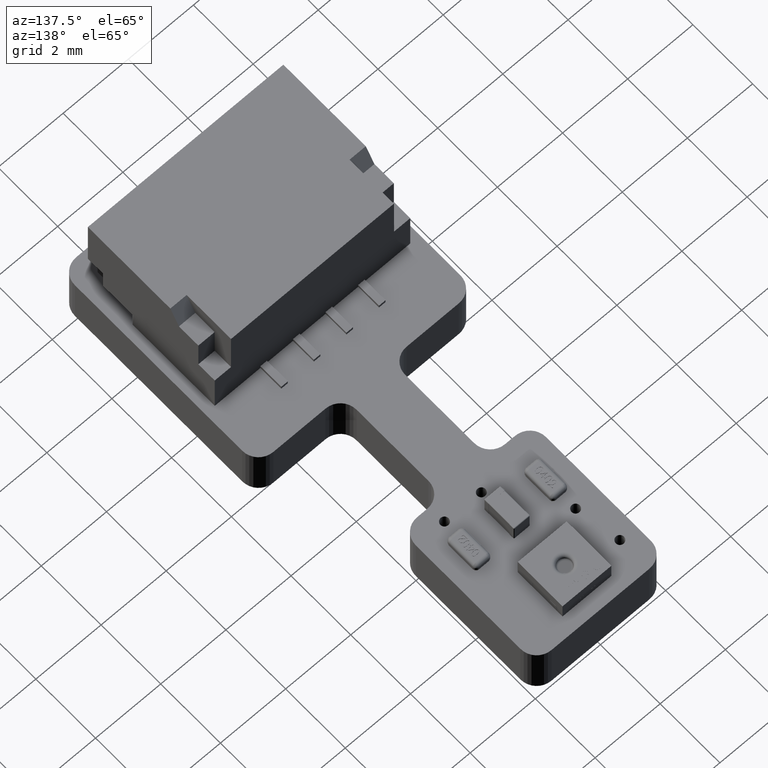
[diagram: clean part render]
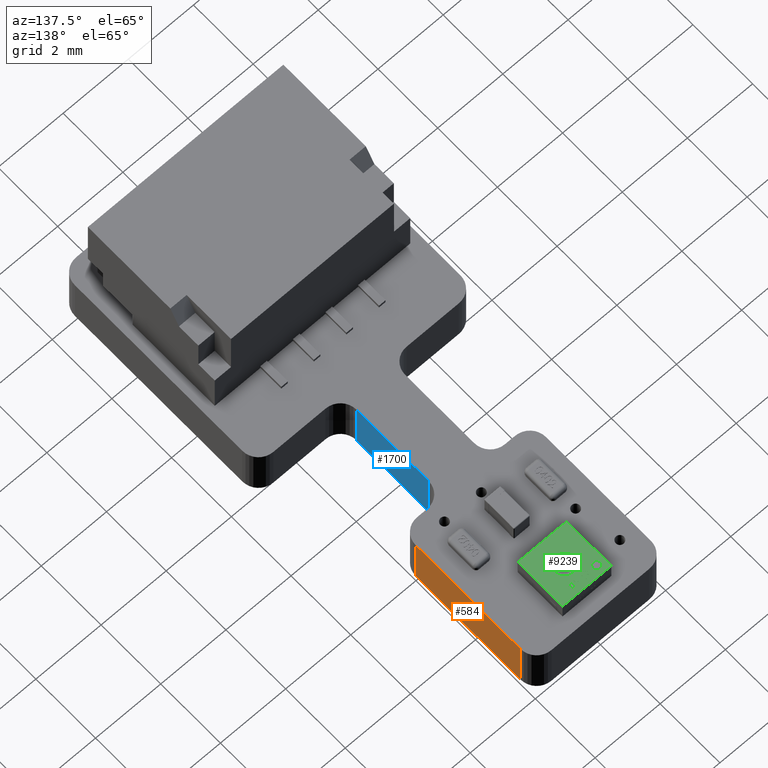
[diagram: same view with three faces highlighted in distinct colors, each labeled with its STEP entity id]
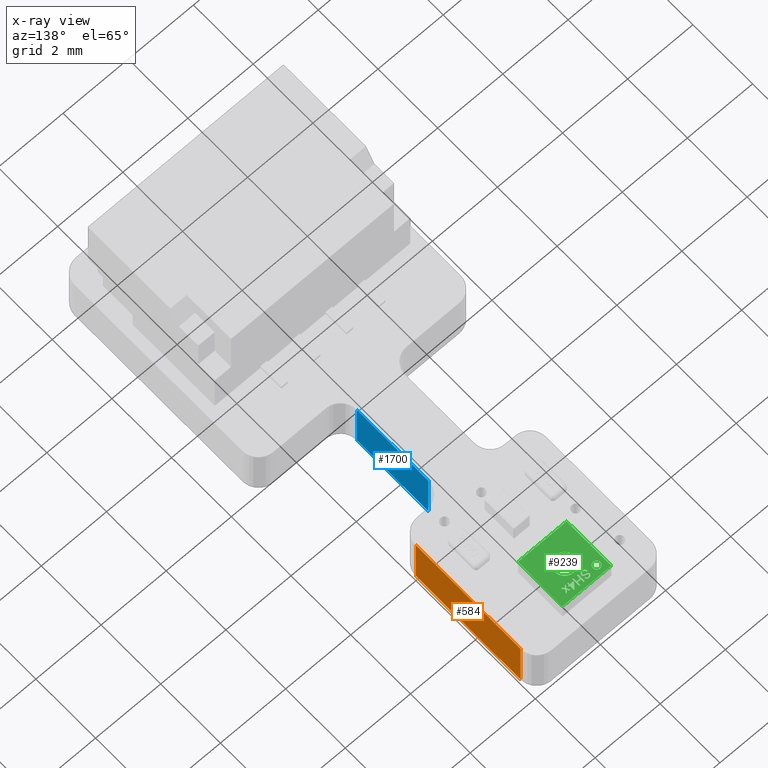
[diagram: x-ray of the same camera — body ghosted, the three highlighted faces saturated]
A machine part, auxiliary view with three faces highlighted in distinct colors.
The next image is the same camera in x-ray (body ghosted, the three faces saturated) — at least one of them is partly hidden behind the body in this view.
Their STEP definitions:

[orange] entity #584 — the highlighted planar face has unit normal (-1, 0, 0).
#526 = EDGE_CURVE('',#527,#529,#531,.T.);
#527 = VERTEX_POINT('',#528);
#528 = CARTESIAN_POINT('',(4.,-0.5,-0.82));
#529 = VERTEX_POINT('',#530);
#530 = CARTESIAN_POINT('',(4.,-0.5,0.82));
#531 = LINE('',#532,#533);
#532 = CARTESIAN_POINT('',(4.,-0.5,-0.82));
#533 = VECTOR('',#534,1.);
#534 = DIRECTION('',(0.E+000,0.E+000,1.));
#584 = ADVANCED_FACE('',(#585),#610,.F.);
#585 = FACE_BOUND('',#586,.F.);
#586 = EDGE_LOOP('',(#587,#597,#603,#604));
#587 = ORIENTED_EDGE('',*,*,#588,.T.);
#588 = EDGE_CURVE('',#589,#591,#593,.T.);
#589 = VERTEX_POINT('',#590);
#590 = CARTESIAN_POINT('',(4.,-4.,-0.82));
#591 = VERTEX_POINT('',#592);
#592 = CARTESIAN_POINT('',(4.,-4.,0.82));
#593 = LINE('',#594,#595);
#594 = CARTESIAN_POINT('',(4.,-4.,-0.82));
#595 = VECTOR('',#596,1.);
#596 = DIRECTION('',(0.E+000,0.E+000,1.));
#597 = ORIENTED_EDGE('',*,*,#598,.T.);
#598 = EDGE_CURVE('',#591,#529,#599,.T.);
#599 = LINE('',#600,#601);
#600 = CARTESIAN_POINT('',(4.,-4.,0.82));
#601 = VECTOR('',#602,1.);
#602 = DIRECTION('',(0.E+000,1.,0.E+000));
#603 = ORIENTED_EDGE('',*,*,#526,.F.);
#604 = ORIENTED_EDGE('',*,*,#605,.F.);
#605 = EDGE_CURVE('',#589,#527,#606,.T.);
#606 = LINE('',#607,#608);
#607 = CARTESIAN_POINT('',(4.,-4.,-0.82));
#608 = VECTOR('',#609,1.);
#609 = DIRECTION('',(0.E+000,1.,0.E+000));
#610 = PLANE('',#611);
#611 = AXIS2_PLACEMENT_3D('',#612,#613,#614);
#612 = CARTESIAN_POINT('',(4.,-4.,-0.82));
#613 = DIRECTION('',(-1.,0.E+000,0.E+000));
#614 = DIRECTION('',(0.E+000,1.,0.E+000));

[blue] entity #1700 — the highlighted planar face has unit normal (-1, 0, 0).
#1642 = EDGE_CURVE('',#1643,#1645,#1647,.T.);
#1643 = VERTEX_POINT('',#1644);
#1644 = CARTESIAN_POINT('',(2.7,-5.,-0.82));
#1645 = VERTEX_POINT('',#1646);
#1646 = CARTESIAN_POINT('',(2.7,-5.,0.82));
#1647 = LINE('',#1648,#1649);
#1648 = CARTESIAN_POINT('',(2.7,-5.,-0.82));
#1649 = VECTOR('',#1650,1.);
#1650 = DIRECTION('',(0.E+000,0.E+000,1.));
#1700 = ADVANCED_FACE('',(#1701),#1726,.F.);
#1701 = FACE_BOUND('',#1702,.F.);
#1702 = EDGE_LOOP('',(#1703,#1713,#1719,#1720));
#1703 = ORIENTED_EDGE('',*,*,#1704,.T.);
#1704 = EDGE_CURVE('',#1705,#1707,#1709,.T.);
#1705 = VERTEX_POINT('',#1706);
#1706 = CARTESIAN_POINT('',(2.7,-7.4,-0.82));
#1707 = VERTEX_POINT('',#1708);
#1708 = CARTESIAN_POINT('',(2.7,-7.4,0.82));
#1709 = LINE('',#1710,#1711);
#1710 = CARTESIAN_POINT('',(2.7,-7.4,-0.82));
#1711 = VECTOR('',#1712,1.);
#1712 = DIRECTION('',(0.E+000,0.E+000,1.));
#1713 = ORIENTED_EDGE('',*,*,#1714,.T.);
#1714 = EDGE_CURVE('',#1707,#1645,#1715,.T.);
#1715 = LINE('',#1716,#1717);
#1716 = CARTESIAN_POINT('',(2.7,-7.4,0.82));
#1717 = VECTOR('',#1718,1.);
#1718 = DIRECTION('',(0.E+000,1.,0.E+000));
#1719 = ORIENTED_EDGE('',*,*,#1642,.F.);
#1720 = ORIENTED_EDGE('',*,*,#1721,.F.);
#1721 = EDGE_CURVE('',#1705,#1643,#1722,.T.);
#1722 = LINE('',#1723,#1724);
#1723 = CARTESIAN_POINT('',(2.7,-7.4,-0.82));
#1724 = VECTOR('',#1725,1.);
#1725 = DIRECTION('',(0.E+000,1.,0.E+000));
#1726 = PLANE('',#1727);
#1727 = AXIS2_PLACEMENT_3D('',#1728,#1729,#1730);
#1728 = CARTESIAN_POINT('',(2.7,-7.4,-0.82));
#1729 = DIRECTION('',(-1.,0.E+000,0.E+000));
#1730 = DIRECTION('',(0.E+000,1.,0.E+000));

[green] entity #9239 — the highlighted planar face has unit normal (0, 0, -1).
#5586 = VERTEX_POINT('',#5587);
#5587 = CARTESIAN_POINT('',(-0.5125,0.54,-0.4));
#5593 = EDGE_CURVE('',#5586,#5594,#5596,.T.);
#5594 = VERTEX_POINT('',#5595);
#5595 = CARTESIAN_POINT('',(-0.5125,0.54,-0.625));
#5596 = CIRCLE('',#5597,0.1125);
#5597 = AXIS2_PLACEMENT_3D('',#5598,#5599,#5600);
#5598 = CARTESIAN_POINT('',(-0.5125,0.54,-0.5125));
#5599 = DIRECTION('',(-0.E+000,1.,0.E+000));
#5600 = DIRECTION('',(0.E+000,0.E+000,-1.));
#5628 = VERTEX_POINT('',#5629);
#5629 = CARTESIAN_POINT('',(3.673940397442E-017,0.54,0.3));
#5636 = EDGE_CURVE('',#5637,#5628,#5639,.T.);
#5637 = VERTEX_POINT('',#5638);
#5638 = CARTESIAN_POINT('',(0.E+000,0.54,-0.3));
#5639 = CIRCLE('',#5640,0.3);
#5640 = AXIS2_PLACEMENT_3D('',#5641,#5642,#5643);
#5641 = CARTESIAN_POINT('',(0.E+000,0.54,1.626303258728E-016));
#5642 = DIRECTION('',(0.E+000,-1.,0.E+000));
#5643 = DIRECTION('',(0.E+000,0.E+000,-1.));
#5777 = VERTEX_POINT('',#5778);
#5778 = CARTESIAN_POINT('',(0.75,0.54,0.75));
#5784 = EDGE_CURVE('',#5785,#5777,#5787,.T.);
#5785 = VERTEX_POINT('',#5786);
#5786 = CARTESIAN_POINT('',(-0.75,0.54,0.75));
#5787 = LINE('',#5788,#5789);
#5788 = CARTESIAN_POINT('',(-0.75,0.54,0.75));
#5789 = VECTOR('',#5790,1.);
#5790 = DIRECTION('',(1.,0.E+000,-1.445602896647E-016));
#5851 = VERTEX_POINT('',#5852);
#5852 = CARTESIAN_POINT('',(-0.75,0.54,-0.75));
#5858 = EDGE_CURVE('',#5851,#5859,#5861,.T.);
#5859 = VERTEX_POINT('',#5860);
#5860 = CARTESIAN_POINT('',(0.75,0.54,-0.75));
#5861 = LINE('',#5862,#5863);
#5862 = CARTESIAN_POINT('',(-0.75,0.54,-0.75));
#5863 = VECTOR('',#5864,1.);
#5864 = DIRECTION('',(1.,0.E+000,-1.445602896647E-016));
#5955 = EDGE_CURVE('',#5851,#5785,#5956,.T.);
#5956 = LINE('',#5957,#5958);
#5957 = CARTESIAN_POINT('',(-0.75,0.54,-0.75));
#5958 = VECTOR('',#5959,1.);
#5959 = DIRECTION('',(1.445602896647E-016,0.E+000,1.));
#5977 = EDGE_CURVE('',#5859,#5777,#5978,.T.);
#5978 = LINE('',#5979,#5980);
#5979 = CARTESIAN_POINT('',(0.75,0.54,-0.75));
#5980 = VECTOR('',#5981,1.);
#5981 = DIRECTION('',(0.E+000,0.E+000,1.));
#6485 = EDGE_CURVE('',#5628,#5637,#6486,.T.);
#6486 = CIRCLE('',#6487,0.3);
#6487 = AXIS2_PLACEMENT_3D('',#6488,#6489,#6490);
#6488 = CARTESIAN_POINT('',(0.E+000,0.54,1.626303258728E-016));
#6489 = DIRECTION('',(0.E+000,-1.,0.E+000));
#6490 = DIRECTION('',(0.E+000,0.E+000,-1.));
#6500 = EDGE_CURVE('',#6501,#6503,#6505,.T.);
#6501 = VERTEX_POINT('',#6502);
#6502 = CARTESIAN_POINT('',(-0.170177283654,0.54,-0.397115384615));
#6503 = VERTEX_POINT('',#6504);
#6504 = CARTESIAN_POINT('',(-0.264423076923,0.54,-0.477884615385));
#6505 = B_SPLINE_CURVE_WITH_KNOTS('',3,(#6506,#6507,#6508,#6509,#6510,
    #6511,#6512,#6513,#6514,#6515,#6516,#6517,#6518,#6519,#6520,#6521,
    #6522,#6523,#6524,#6525,#6526,#6527,#6528,#6529,#6530,#6531,#6532),
  .UNSPECIFIED.,.F.,.F.,(4,1,1,1,1,1,1,1,1,1,1,1,1,1,1,1,1,1,1,1,1,1,1,1
    ,4),(0.E+000,5.24925849213E-002,0.102825475138,0.151397339492,
    0.198033077248,0.242875895463,0.285999168385,0.327848661484,
    0.36839459688,0.407851991139,0.44683755286,0.485166045161,
    0.523341404471,0.561602214409,0.599919885566,0.638496426411,
    0.677790577047,0.717289989176,0.756605241593,0.796067890532,
    0.835886230954,0.875713683273,0.916263453947,0.957759675478,1.),
  .UNSPECIFIED.);
#6506 = CARTESIAN_POINT('',(-0.170177283654,0.54,-0.397115384615));
#6507 = CARTESIAN_POINT('',(-0.172627046657,0.54,-0.397135601177));
#6508 = CARTESIAN_POINT('',(-0.177425782426,0.54,-0.397175202534));
#6509 = CARTESIAN_POINT('',(-0.184476988682,0.54,-0.397654787454));
#6510 = CARTESIAN_POINT('',(-0.191234288512,0.54,-0.398348530612));
#6511 = CARTESIAN_POINT('',(-0.197691050567,0.54,-0.399381868767));
#6512 = CARTESIAN_POINT('',(-0.203827027079,0.54,-0.400737552317));
#6513 = CARTESIAN_POINT('',(-0.20966424342,0.54,-0.402365466254));
#6514 = CARTESIAN_POINT('',(-0.215216535442,0.54,-0.404240344772));
#6515 = CARTESIAN_POINT('',(-0.220464503257,0.54,-0.406445169414));
#6516 = CARTESIAN_POINT('',(-0.225394447476,0.54,-0.4090069348));
#6517 = CARTESIAN_POINT('',(-0.230095013479,0.54,-0.41177043148));
#6518 = CARTESIAN_POINT('',(-0.23448936739,0.54,-0.414902984478));
#6519 = CARTESIAN_POINT('',(-0.238586759872,0.54,-0.4183553705));
#6520 = CARTESIAN_POINT('',(-0.242491010132,0.54,-0.422027853191));
#6521 = CARTESIAN_POINT('',(-0.246040298617,0.54,-0.426070413727));
#6522 = CARTESIAN_POINT('',(-0.249355292067,0.54,-0.430364833072));
#6523 = CARTESIAN_POINT('',(-0.252360243841,0.54,-0.434950415387));
#6524 = CARTESIAN_POINT('',(-0.255044710777,0.54,-0.439767166084));
#6525 = CARTESIAN_POINT('',(-0.257458811365,0.54,-0.444734193016));
#6526 = CARTESIAN_POINT('',(-0.259492724888,0.54,-0.449887528084));
#6527 = CARTESIAN_POINT('',(-0.261131865652,0.54,-0.455201126444));
#6528 = CARTESIAN_POINT('',(-0.262520300869,0.54,-0.46063942943));
#6529 = CARTESIAN_POINT('',(-0.263483148604,0.54,-0.466247810202));
#6530 = CARTESIAN_POINT('',(-0.264191066689,0.54,-0.47200866047));
#6531 = CARTESIAN_POINT('',(-0.264345283376,0.54,-0.47591439465));
#6532 = CARTESIAN_POINT('',(-0.264423076923,0.54,-0.477884615385));
#6638 = EDGE_CURVE('',#6639,#6501,#6641,.T.);
#6639 = VERTEX_POINT('',#6640);
#6640 = CARTESIAN_POINT('',(-8.846153846154E-002,0.54,-0.4638671875));
#6641 = B_SPLINE_CURVE_WITH_KNOTS('',3,(#6642,#6643,#6644,#6645,#6646,
    #6647,#6648,#6649,#6650,#6651,#6652,#6653,#6654,#6655,#6656,#6657,
    #6658,#6659,#6660),.UNSPECIFIED.,.F.,.F.,(4,1,1,1,1,1,1,1,1,1,1,1,1,
    1,1,1,4),(0.E+000,7.481596665056E-002,0.148534560514,0.223872327296,
    0.301297120935,0.34089362902,0.380340062065,0.420126588728,
    0.459949907083,0.500831155556,0.541907175597,0.584438794153,
    0.628080171331,0.717266679907,0.807860006422,0.901924655836,1.),
  .UNSPECIFIED.);
#6642 = CARTESIAN_POINT('',(-8.846153846154E-002,0.54,-0.4638671875));
#6643 = CARTESIAN_POINT('',(-8.857896169981E-002,0.54,-0.460926637611));
#6644 = CARTESIAN_POINT('',(-8.881208585596E-002,0.54,-0.455088668725));
#6645 = CARTESIAN_POINT('',(-9.081936891742E-002,0.54,-0.446483232591));
#6646 = CARTESIAN_POINT('',(-9.397270444263E-002,0.54,-0.438144613009));
#6647 = CARTESIAN_POINT('',(-9.76707714427E-002,0.54,-0.431527459035));
#6648 = CARTESIAN_POINT('',(-0.101166562502,0.54,-0.426472915047));
#6649 = CARTESIAN_POINT('',(-0.104103191891,0.54,-0.422839939833));
#6650 = CARTESIAN_POINT('',(-0.107359745047,0.54,-0.419480700637));
#6651 = CARTESIAN_POINT('',(-0.110856048937,0.54,-0.416289958871));
#6652 = CARTESIAN_POINT('',(-0.114619249064,0.54,-0.413332816093));
#6653 = CARTESIAN_POINT('',(-0.11868107154,0.54,-0.410608265344));
#6654 = CARTESIAN_POINT('',(-0.122998645749,0.54,-0.408087944293));
#6655 = CARTESIAN_POINT('',(-0.129164033147,0.54,-0.405016785504));
#6656 = CARTESIAN_POINT('',(-0.137352691869,0.54,-0.401804061781));
#6657 = CARTESIAN_POINT('',(-0.147783399195,0.54,-0.399128614265));
#6658 = CARTESIAN_POINT('',(-0.158776101316,0.54,-0.397392985305));
#6659 = CARTESIAN_POINT('',(-0.166324369158,0.54,-0.397209196967));
#6660 = CARTESIAN_POINT('',(-0.170177283654,0.54,-0.397115384615));
#6735 = EDGE_CURVE('',#6736,#6639,#6738,.T.);
#6736 = VERTEX_POINT('',#6737);
#6737 = CARTESIAN_POINT('',(-0.127493990385,0.54,-0.518269230769));
#6738 = B_SPLINE_CURVE_WITH_KNOTS('',3,(#6739,#6740,#6741,#6742,#6743,
    #6744,#6745,#6746,#6747,#6748,#6749,#6750,#6751,#6752,#6753,#6754,
    #6755,#6756,#6757),.UNSPECIFIED.,.F.,.F.,(4,1,1,1,1,1,1,1,1,1,1,1,1,
    1,1,1,4),(0.E+000,7.493130598184E-002,0.147077596434,0.216364456173,
    0.282502730901,0.346687710824,0.408835555131,0.469261987288,
    0.528432043253,0.587001337973,0.644416393832,0.702188790266,
    0.759767179544,0.818489792827,0.877632827417,0.93801956627,1.),
  .UNSPECIFIED.);
#6739 = CARTESIAN_POINT('',(-0.127493990385,0.54,-0.518269230769));
#6740 = CARTESIAN_POINT('',(-0.125876248387,0.54,-0.517523347821));
#6741 = CARTESIAN_POINT('',(-0.122700891951,0.54,-0.51605930459));
#6742 = CARTESIAN_POINT('',(-0.118202574359,0.54,-0.513559671015));
#6743 = CARTESIAN_POINT('',(-0.11400515602,0.54,-0.510963936113));
#6744 = CARTESIAN_POINT('',(-0.110142549271,0.54,-0.508202213935));
#6745 = CARTESIAN_POINT('',(-0.106627243786,0.54,-0.505268695269));
#6746 = CARTESIAN_POINT('',(-0.103419934342,0.54,-0.502196991783));
#6747 = CARTESIAN_POINT('',(-0.100501249917,0.54,-0.499004366953));
#6748 = CARTESIAN_POINT('',(-9.798895914787E-002,0.54,-0.495588638194));
#6749 = CARTESIAN_POINT('',(-9.573317979195E-002,0.54,-0.492087884652));
#6750 = CARTESIAN_POINT('',(-9.375922264548E-002,0.54,-0.488453178794));
#6751 = CARTESIAN_POINT('',(-9.216983026013E-002,0.54,-0.484663145614));
#6752 = CARTESIAN_POINT('',(-9.077583400205E-002,0.54,-0.480763470442));
#6753 = CARTESIAN_POINT('',(-8.977315084678E-002,0.54,-0.476710777547));
#6754 = CARTESIAN_POINT('',(-8.898684501323E-002,0.54,-0.472546001833));
#6755 = CARTESIAN_POINT('',(-8.852820597039E-002,0.54,-0.468249567644));
#6756 = CARTESIAN_POINT('',(-8.848395307921E-002,0.54,-0.465340609518));
#6757 = CARTESIAN_POINT('',(-8.846153846154E-002,0.54,-0.4638671875));
#6832 = EDGE_CURVE('',#6833,#6736,#6835,.T.);
#6833 = VERTEX_POINT('',#6834);
#6834 = CARTESIAN_POINT('',(-0.215970552885,0.54,-0.548467548077));
#6835 = B_SPLINE_CURVE_WITH_KNOTS('',3,(#6836,#6837,#6838,#6839,#6840,
    #6841,#6842,#6843,#6844,#6845,#6846,#6847,#6848,#6849,#6850,#6851,
    #6852,#6853,#6854),.UNSPECIFIED.,.F.,.F.,(4,1,1,1,1,1,1,1,1,1,1,1,1,
    1,1,1,4),(0.E+000,3.274321823114E-002,7.240960549386E-002,
    0.119611485793,0.174672915199,0.237345090195,0.308352416843,
    0.387630047762,0.474783615586,0.56333231599,0.64513621683,
    0.720202526722,0.789134156332,0.85149707357,0.907330604432,
    0.956968682342,1.),.UNSPECIFIED.);
#6836 = CARTESIAN_POINT('',(-0.215970552885,0.54,-0.548467548077));
#6837 = CARTESIAN_POINT('',(-0.215189165077,0.54,-0.547801551614));
#6838 = CARTESIAN_POINT('',(-0.213461174185,0.54,-0.546328741555));
#6839 = CARTESIAN_POINT('',(-0.210245980757,0.54,-0.544379649887));
#6840 = CARTESIAN_POINT('',(-0.206259617744,0.54,-0.542410341157));
#6841 = CARTESIAN_POINT('',(-0.201475448921,0.54,-0.540452695888));
#6842 = CARTESIAN_POINT('',(-0.195901705622,0.54,-0.53848294847));
#6843 = CARTESIAN_POINT('',(-0.189547378405,0.54,-0.536454851277));
#6844 = CARTESIAN_POINT('',(-0.182388264388,0.54,-0.534440571589));
#6845 = CARTESIAN_POINT('',(-0.174642537352,0.54,-0.532499479833));
#6846 = CARTESIAN_POINT('',(-0.16681754693,0.54,-0.530550584739));
#6847 = CARTESIAN_POINT('',(-0.159381175319,0.54,-0.528609117454));
#6848 = CARTESIAN_POINT('',(-0.15255332743,0.54,-0.52676914073));
#6849 = CARTESIAN_POINT('',(-0.14634483614,0.54,-0.524974544832));
#6850 = CARTESIAN_POINT('',(-0.140749275467,0.54,-0.523230404229));
#6851 = CARTESIAN_POINT('',(-0.135786092035,0.54,-0.521500176926));
#6852 = CARTESIAN_POINT('',(-0.131415131812,0.54,-0.519908806691));
#6853 = CARTESIAN_POINT('',(-0.128737402289,0.54,-0.518789147803));
#6854 = CARTESIAN_POINT('',(-0.127493990385,0.54,-0.518269230769));
#6929 = EDGE_CURVE('',#6930,#6833,#6932,.T.);
#6930 = VERTEX_POINT('',#6931);
#6931 = CARTESIAN_POINT('',(-0.224038461538,0.54,-0.568344350962));
#6932 = B_SPLINE_CURVE_WITH_KNOTS('',3,(#6933,#6934,#6935,#6936,#6937,
    #6938,#6939),.UNSPECIFIED.,.F.,.F.,(4,1,1,1,4),(0.E+000,
    0.262741230528,0.509956502943,0.75332671842,1.),.UNSPECIFIED.);
#6933 = CARTESIAN_POINT('',(-0.224038461538,0.54,-0.568344350962));
#6934 = CARTESIAN_POINT('',(-0.223956461762,0.54,-0.56640854986));
#6935 = CARTESIAN_POINT('',(-0.223797307756,0.54,-0.56265133841));
#6936 = CARTESIAN_POINT('',(-0.222172112661,0.54,-0.557313473518));
#6937 = CARTESIAN_POINT('',(-0.219672551234,0.54,-0.552447663811));
#6938 = CARTESIAN_POINT('',(-0.217210084965,0.54,-0.549800201598));
#6939 = CARTESIAN_POINT('',(-0.215970552885,0.54,-0.548467548077));
#6978 = EDGE_CURVE('',#6979,#6930,#6981,.T.);
#6979 = VERTEX_POINT('',#6980);
#6980 = CARTESIAN_POINT('',(-0.176397235577,0.54,-0.601923076923));
#6981 = B_SPLINE_CURVE_WITH_KNOTS('',3,(#6982,#6983,#6984,#6985,#6986,
    #6987,#6988,#6989,#6990,#6991,#6992,#6993,#6994,#6995,#6996,#6997,
    #6998,#6999,#7000),.UNSPECIFIED.,.F.,.F.,(4,1,1,1,1,1,1,1,1,1,1,1,1,
    1,1,1,4),(0.E+000,9.151103632804E-002,0.177142860314,0.257108485228,
    0.331198399388,0.400592294524,0.465624959805,0.526973491314,
    0.585443115704,0.641398508086,0.695044167266,0.746781551493,
    0.796958934577,0.84754486236,0.897438541419,0.947648918887,1.),
  .UNSPECIFIED.);
#6982 = CARTESIAN_POINT('',(-0.176397235577,0.54,-0.601923076923));
#6983 = CARTESIAN_POINT('',(-0.178396809928,0.54,-0.601908005077));
#6984 = CARTESIAN_POINT('',(-0.182267494102,0.54,-0.601878829689));
#6985 = CARTESIAN_POINT('',(-0.187863007025,0.54,-0.601346998831));
#6986 = CARTESIAN_POINT('',(-0.193049324228,0.54,-0.600617308028));
#6987 = CARTESIAN_POINT('',(-0.197817537661,0.54,-0.599540952046));
#6988 = CARTESIAN_POINT('',(-0.20215202728,0.54,-0.598131998451));
#6989 = CARTESIAN_POINT('',(-0.206117123124,0.54,-0.596504980357));
#6990 = CARTESIAN_POINT('',(-0.209601857779,0.54,-0.594443123489));
#6991 = CARTESIAN_POINT('',(-0.212687466422,0.54,-0.592146483107));
#6992 = CARTESIAN_POINT('',(-0.215349194685,0.54,-0.589605377391));
#6993 = CARTESIAN_POINT('',(-0.217643210157,0.54,-0.586927666347));
#6994 = CARTESIAN_POINT('',(-0.219672089659,0.54,-0.58419202305));
#6995 = CARTESIAN_POINT('',(-0.221248573785,0.54,-0.581248915444));
#6996 = CARTESIAN_POINT('',(-0.222532068814,0.54,-0.578209803485));
#6997 = CARTESIAN_POINT('',(-0.223360064139,0.54,-0.57501756182));
#6998 = CARTESIAN_POINT('',(-0.223946304171,0.54,-0.571731238627));
#6999 = CARTESIAN_POINT('',(-0.224007317915,0.54,-0.569488914412));
#7000 = CARTESIAN_POINT('',(-0.224038461538,0.54,-0.568344350962));
#7075 = EDGE_CURVE('',#7076,#6979,#7078,.T.);
#7076 = VERTEX_POINT('',#7077);
#7077 = CARTESIAN_POINT('',(-0.125961538462,0.54,-0.561538461538));
#7078 = B_SPLINE_CURVE_WITH_KNOTS('',3,(#7079,#7080,#7081,#7082,#7083,
    #7084,#7085,#7086,#7087,#7088,#7089,#7090,#7091,#7092,#7093,#7094,
    #7095,#7096,#7097),.UNSPECIFIED.,.F.,.F.,(4,1,1,1,1,1,1,1,1,1,1,1,1,
    1,1,1,4),(0.E+000,6.715546744905E-002,0.131403346483,0.19273177191,
    0.251252659157,0.307703729884,0.362698916298,0.417778332785,
    0.472304385798,0.527872599792,0.585229986812,0.64505657601,
    0.707952356429,0.774434272045,0.844940431375,0.920403594475,1.),
  .UNSPECIFIED.);
#7079 = CARTESIAN_POINT('',(-0.125961538462,0.54,-0.561538461538));
#7080 = CARTESIAN_POINT('',(-0.126163151093,0.54,-0.563149601908));
#7081 = CARTESIAN_POINT('',(-0.12655764726,0.54,-0.566302126106));
#7082 = CARTESIAN_POINT('',(-0.127536339884,0.54,-0.570865879159));
#7083 = CARTESIAN_POINT('',(-0.128908270002,0.54,-0.575104487631));
#7084 = CARTESIAN_POINT('',(-0.130515220622,0.54,-0.579057479416));
#7085 = CARTESIAN_POINT('',(-0.1324631812,0.54,-0.582683739049));
#7086 = CARTESIAN_POINT('',(-0.134733939568,0.54,-0.586018086556));
#7087 = CARTESIAN_POINT('',(-0.137355148745,0.54,-0.589021237633));
#7088 = CARTESIAN_POINT('',(-0.140259362262,0.54,-0.591772547046));
#7089 = CARTESIAN_POINT('',(-0.143534954803,0.54,-0.594168169528));
#7090 = CARTESIAN_POINT('',(-0.147165095354,0.54,-0.596247643388));
#7091 = CARTESIAN_POINT('',(-0.151155911709,0.54,-0.598004322634));
#7092 = CARTESIAN_POINT('',(-0.155503887966,0.54,-0.59944310023));
#7093 = CARTESIAN_POINT('',(-0.160209884938,0.54,-0.6005586721));
#7094 = CARTESIAN_POINT('',(-0.165284606472,0.54,-0.601379308064));
#7095 = CARTESIAN_POINT('',(-0.170726091107,0.54,-0.601799592484));
#7096 = CARTESIAN_POINT('',(-0.17447355681,0.54,-0.601881190423));
#7097 = CARTESIAN_POINT('',(-0.176397235577,0.54,-0.601923076923));
#7172 = EDGE_CURVE('',#7173,#7076,#7175,.T.);
#7173 = VERTEX_POINT('',#7174);
#7174 = CARTESIAN_POINT('',(-9.423076923077E-002,0.54,-0.561538461538));
#7175 = LINE('',#7176,#7177);
#7176 = CARTESIAN_POINT('',(-9.423076923077E-002,0.54,-0.561538461538));
#7177 = VECTOR('',#7178,1.);
#7178 = DIRECTION('',(-1.,0.E+000,0.E+000));
#7203 = EDGE_CURVE('',#7204,#7173,#7206,.T.);
#7204 = VERTEX_POINT('',#7205);
#7205 = CARTESIAN_POINT('',(-0.177659254808,0.54,-0.627884615385));
#7206 = B_SPLINE_CURVE_WITH_KNOTS('',3,(#7207,#7208,#7209,#7210,#7211,
    #7212,#7213,#7214,#7215,#7216,#7217,#7218,#7219,#7220,#7221,#7222,
    #7223,#7224,#7225),.UNSPECIFIED.,.F.,.F.,(4,1,1,1,1,1,1,1,1,1,1,1,1,
    1,1,1,4),(0.E+000,0.100475060807,0.19564430316,0.28608337907,
    0.37298288047,0.415025668191,0.456051673509,0.495938749519,
    0.535566088803,0.574087109909,0.612519287487,0.651080960134,
    0.689513137713,0.766237460328,0.842350438867,0.919974494737,1.),
  .UNSPECIFIED.);
#7207 = CARTESIAN_POINT('',(-0.177659254808,0.54,-0.627884615385));
#7208 = CARTESIAN_POINT('',(-0.173658535481,0.54,-0.627792945011));
#7209 = CARTESIAN_POINT('',(-0.165868364085,0.54,-0.627614445131));
#7210 = CARTESIAN_POINT('',(-0.154549024856,0.54,-0.626129358642));
#7211 = CARTESIAN_POINT('',(-0.143991180129,0.54,-0.623579074351));
#7212 = CARTESIAN_POINT('',(-0.135711356049,0.54,-0.620724286958));
#7213 = CARTESIAN_POINT('',(-0.129590178934,0.54,-0.617834202064));
#7214 = CARTESIAN_POINT('',(-0.12524152427,0.54,-0.615579098167));
#7215 = CARTESIAN_POINT('',(-0.121205112816,0.54,-0.612971787258));
#7216 = CARTESIAN_POINT('',(-0.117444608726,0.54,-0.610150268962));
#7217 = CARTESIAN_POINT('',(-0.113925082008,0.54,-0.607115831852));
#7218 = CARTESIAN_POINT('',(-0.110736992402,0.54,-0.603796296698));
#7219 = CARTESIAN_POINT('',(-0.107741904163,0.54,-0.600304920034));
#7220 = CARTESIAN_POINT('',(-0.104222258117,0.54,-0.59529239705));
#7221 = CARTESIAN_POINT('',(-0.100427333508,0.54,-0.588658351238));
#7222 = CARTESIAN_POINT('',(-9.714610462459E-002,0.54,-0.580063681387));
#7223 = CARTESIAN_POINT('',(-9.489186210805E-002,0.54,-0.570992713026));
#7224 = CARTESIAN_POINT('',(-9.445336006595E-002,0.54,-0.564721720362));
#7225 = CARTESIAN_POINT('',(-9.423076923077E-002,0.54,-0.561538461538));
#7300 = EDGE_CURVE('',#7301,#7204,#7303,.T.);
#7301 = VERTEX_POINT('',#7302);
#7302 = CARTESIAN_POINT('',(-0.255769230769,0.54,-0.566271033654));
#7303 = B_SPLINE_CURVE_WITH_KNOTS('',3,(#7304,#7305,#7306,#7307,#7308,
    #7309,#7310,#7311,#7312,#7313,#7314,#7315,#7316,#7317,#7318,#7319,
    #7320,#7321,#7322),.UNSPECIFIED.,.F.,.F.,(4,1,1,1,1,1,1,1,1,1,1,1,1,
    1,1,1,4),(0.E+000,7.499546738983E-002,0.149165440427,0.223664294338,
    0.300412022191,0.339570484611,0.378920574693,0.418095737599,
    0.45822967675,0.498426721218,0.539707546453,0.582215951646,
    0.625823819994,0.715481264874,0.807384084413,0.901634125507,1.),
  .UNSPECIFIED.);
#7304 = CARTESIAN_POINT('',(-0.255769230769,0.54,-0.566271033654));
#7305 = CARTESIAN_POINT('',(-0.255662142949,0.54,-0.569060457379));
#7306 = CARTESIAN_POINT('',(-0.255449146051,0.54,-0.574608600926));
#7307 = CARTESIAN_POINT('',(-0.253559746839,0.54,-0.582750155708));
#7308 = CARTESIAN_POINT('',(-0.250546118947,0.54,-0.590584496982));
#7309 = CARTESIAN_POINT('',(-0.24711569518,0.54,-0.596804295437));
#7310 = CARTESIAN_POINT('',(-0.243770273935,0.54,-0.601507679194));
#7311 = CARTESIAN_POINT('',(-0.240996894313,0.54,-0.604894970196));
#7312 = CARTESIAN_POINT('',(-0.237886006636,0.54,-0.608026065345));
#7313 = CARTESIAN_POINT('',(-0.234533415433,0.54,-0.610944672615));
#7314 = CARTESIAN_POINT('',(-0.230879189737,0.54,-0.613607184637));
#7315 = CARTESIAN_POINT('',(-0.227013991254,0.54,-0.616123027309));
#7316 = CARTESIAN_POINT('',(-0.222797921386,0.54,-0.618285454459));
#7317 = CARTESIAN_POINT('',(-0.216873716226,0.54,-0.621037736133));
#7318 = CARTESIAN_POINT('',(-0.208948557179,0.54,-0.623786146761));
#7319 = CARTESIAN_POINT('',(-0.198971773185,0.54,-0.626181038004));
#7320 = CARTESIAN_POINT('',(-0.188471535624,0.54,-0.627591339665));
#7321 = CARTESIAN_POINT('',(-0.181314327029,0.54,-0.627785474051));
#7322 = CARTESIAN_POINT('',(-0.177659254808,0.54,-0.627884615385));
#7397 = EDGE_CURVE('',#7398,#7301,#7400,.T.);
#7398 = VERTEX_POINT('',#7399);
#7399 = CARTESIAN_POINT('',(-0.222551081731,0.54,-0.517638221154));
#7400 = B_SPLINE_CURVE_WITH_KNOTS('',3,(#7401,#7402,#7403,#7404,#7405,
    #7406,#7407,#7408,#7409,#7410,#7411),.UNSPECIFIED.,.F.,.F.,(4,1,1,1,
    1,1,1,1,4),(0.E+000,0.144805241058,0.279511801025,0.406393921131,
    0.527501540483,0.645393290473,0.761885410674,0.878942072918,1.),
  .UNSPECIFIED.);
#7401 = CARTESIAN_POINT('',(-0.222551081731,0.54,-0.517638221154));
#7402 = CARTESIAN_POINT('',(-0.225199250176,0.54,-0.519068838032));
#7403 = CARTESIAN_POINT('',(-0.230310904466,0.54,-0.521830300927));
#7404 = CARTESIAN_POINT('',(-0.237190625002,0.54,-0.526767804309));
#7405 = CARTESIAN_POINT('',(-0.242987487963,0.54,-0.532246878179));
#7406 = CARTESIAN_POINT('',(-0.247677037525,0.54,-0.538259577649));
#7407 = CARTESIAN_POINT('',(-0.251352054011,0.54,-0.544704213536));
#7408 = CARTESIAN_POINT('',(-0.253831571564,0.54,-0.55159174178));
#7409 = CARTESIAN_POINT('',(-0.255529836405,0.54,-0.558797140877));
#7410 = CARTESIAN_POINT('',(-0.255688543678,0.54,-0.563751982431));
#7411 = CARTESIAN_POINT('',(-0.255769230769,0.54,-0.566271033654));
#7462 = EDGE_CURVE('',#7463,#7398,#7465,.T.);
#7463 = VERTEX_POINT('',#7464);
#7464 = CARTESIAN_POINT('',(-0.144170673077,0.54,-0.492713341346));
#7465 = B_SPLINE_CURVE_WITH_KNOTS('',3,(#7466,#7467,#7468,#7469,#7470,
    #7471,#7472,#7473,#7474,#7475,#7476,#7477,#7478,#7479,#7480,#7481,
    #7482,#7483,#7484),.UNSPECIFIED.,.F.,.F.,(4,1,1,1,1,1,1,1,1,1,1,1,1,
    1,1,1,4),(0.E+000,3.120011115394E-002,7.04867190162E-002,
    0.11721483002,0.171575526995,0.234121978488,0.303962639673,
    0.382155640156,0.467646222068,0.554335381402,0.635074465667,
    0.710036687879,0.779092403775,0.842965645351,0.901001206851,
    0.953246256459,1.),.UNSPECIFIED.);
#7466 = CARTESIAN_POINT('',(-0.144170673077,0.54,-0.492713341346));
#7467 = CARTESIAN_POINT('',(-0.144963358906,0.54,-0.493038633451));
#7468 = CARTESIAN_POINT('',(-0.146754180197,0.54,-0.493773527411));
#7469 = CARTESIAN_POINT('',(-0.149823563854,0.54,-0.494746400481));
#7470 = CARTESIAN_POINT('',(-0.153465776275,0.54,-0.49600442463));
#7471 = CARTESIAN_POINT('',(-0.157768318687,0.54,-0.497299984758));
#7472 = CARTESIAN_POINT('',(-0.162708157688,0.54,-0.49867050618));
#7473 = CARTESIAN_POINT('',(-0.168277068944,0.54,-0.500221728642));
#7474 = CARTESIAN_POINT('',(-0.174471940637,0.54,-0.501871368822));
#7475 = CARTESIAN_POINT('',(-0.18111707551,0.54,-0.503627231106));
#7476 = CARTESIAN_POINT('',(-0.18782663675,0.54,-0.505412673786));
#7477 = CARTESIAN_POINT('',(-0.194236838666,0.54,-0.507199788499));
#7478 = CARTESIAN_POINT('',(-0.20013452917,0.54,-0.509013938853));
#7479 = CARTESIAN_POINT('',(-0.205568018309,0.54,-0.510760715178));
#7480 = CARTESIAN_POINT('',(-0.210509293975,0.54,-0.51251469814));
#7481 = CARTESIAN_POINT('',(-0.21497238064,0.54,-0.514227867453));
#7482 = CARTESIAN_POINT('',(-0.218962842693,0.54,-0.515865465186));
#7483 = CARTESIAN_POINT('',(-0.221400065004,0.54,-0.517069565679));
#7484 = CARTESIAN_POINT('',(-0.222551081731,0.54,-0.517638221154));
#7559 = EDGE_CURVE('',#7560,#7463,#7562,.T.);
#7560 = VERTEX_POINT('',#7561);
#7561 = CARTESIAN_POINT('',(-0.120192307692,0.54,-0.462334735577));
#7562 = B_SPLINE_CURVE_WITH_KNOTS('',3,(#7563,#7564,#7565,#7566,#7567,
    #7568,#7569,#7570,#7571,#7572,#7573),.UNSPECIFIED.,.F.,.F.,(4,1,1,1,
    1,1,1,1,4),(0.E+000,0.117767519212,0.230176448544,0.33984295897,
    0.450625259921,0.566942888872,0.696021306455,0.839438360227,1.),
  .UNSPECIFIED.);
#7563 = CARTESIAN_POINT('',(-0.120192307692,0.54,-0.462334735577));
#7564 = CARTESIAN_POINT('',(-0.120268272467,0.54,-0.463961196385));
#7565 = CARTESIAN_POINT('',(-0.120416745512,0.54,-0.467140111717));
#7566 = CARTESIAN_POINT('',(-0.121384303223,0.54,-0.471768215339));
#7567 = CARTESIAN_POINT('',(-0.123223283377,0.54,-0.476004274455));
#7568 = CARTESIAN_POINT('',(-0.125609571462,0.54,-0.48002118525));
#7569 = CARTESIAN_POINT('',(-0.128929305626,0.54,-0.4836937799));
#7570 = CARTESIAN_POINT('',(-0.133123415103,0.54,-0.487077748275));
#7571 = CARTESIAN_POINT('',(-0.138284306649,0.54,-0.490145686774));
#7572 = CARTESIAN_POINT('',(-0.142136135755,0.54,-0.491825868722));
#7573 = CARTESIAN_POINT('',(-0.144170673077,0.54,-0.492713341346));
#7624 = EDGE_CURVE('',#7625,#7560,#7627,.T.);
#7625 = VERTEX_POINT('',#7626);
#7626 = CARTESIAN_POINT('',(-0.171574519231,0.54,-0.423076923077));
#7627 = B_SPLINE_CURVE_WITH_KNOTS('',3,(#7628,#7629,#7630,#7631,#7632,
    #7633,#7634,#7635,#7636,#7637,#7638,#7639,#7640,#7641,#7642),
  .UNSPECIFIED.,.F.,.F.,(4,1,1,1,1,1,1,1,1,1,1,1,4),(0.E+000,
    0.10558388642,0.205868133262,0.300946717742,0.393001928595,
    0.480948511607,0.56287386628,0.641461343633,0.717741618179,
    0.791771760309,0.86271639303,0.9317768462,1.),.UNSPECIFIED.);
#7628 = CARTESIAN_POINT('',(-0.171574519231,0.54,-0.423076923077));
#7629 = CARTESIAN_POINT('',(-0.169030926238,0.54,-0.423124002274));
#7630 = CARTESIAN_POINT('',(-0.164071412444,0.54,-0.423215797592));
#7631 = CARTESIAN_POINT('',(-0.156896921389,0.54,-0.424318486785));
#7632 = CARTESIAN_POINT('',(-0.15014570446,0.54,-0.425882621782));
#7633 = CARTESIAN_POINT('',(-0.143943408843,0.54,-0.428248620847));
#7634 = CARTESIAN_POINT('',(-0.138312914177,0.54,-0.431121685573));
#7635 = CARTESIAN_POINT('',(-0.133423460351,0.54,-0.434596724732));
#7636 = CARTESIAN_POINT('',(-0.129249104762,0.54,-0.438515614316));
#7637 = CARTESIAN_POINT('',(-0.125980281762,0.54,-0.442981575704));
#7638 = CARTESIAN_POINT('',(-0.123412359682,0.54,-0.447661156408));
#7639 = CARTESIAN_POINT('',(-0.121528523376,0.54,-0.452471282744));
#7640 = CARTESIAN_POINT('',(-0.120406360696,0.54,-0.457385256307));
#7641 = CARTESIAN_POINT('',(-0.120263367987,0.54,-0.460691631067));
#7642 = CARTESIAN_POINT('',(-0.120192307692,0.54,-0.462334735577));
#7705 = EDGE_CURVE('',#7706,#7625,#7708,.T.);
#7706 = VERTEX_POINT('',#7707);
#7707 = CARTESIAN_POINT('',(-0.232692307692,0.54,-0.477884615385));
#7708 = B_SPLINE_CURVE_WITH_KNOTS('',3,(#7709,#7710,#7711,#7712,#7713,
    #7714,#7715,#7716,#7717,#7718,#7719,#7720,#7721,#7722,#7723),
  .UNSPECIFIED.,.F.,.F.,(4,1,1,1,1,1,1,1,1,1,1,1,4),(0.E+000,
    9.379647069693E-002,0.180188071019,0.260363191666,0.334846676064,
    0.407093005833,0.481448379288,0.559270913756,0.642269811311,
    0.728585944572,0.815977545276,0.906035129888,1.),.UNSPECIFIED.);
#7709 = CARTESIAN_POINT('',(-0.232692307692,0.54,-0.477884615385));
#7710 = CARTESIAN_POINT('',(-0.232343287639,0.54,-0.475035628639));
#7711 = CARTESIAN_POINT('',(-0.231672801323,0.54,-0.469562571687));
#7712 = CARTESIAN_POINT('',(-0.229798054615,0.54,-0.461805337353));
#7713 = CARTESIAN_POINT('',(-0.227385134636,0.54,-0.454830787581));
#7714 = CARTESIAN_POINT('',(-0.224378702863,0.54,-0.44854635778));
#7715 = CARTESIAN_POINT('',(-0.220423856416,0.54,-0.443027397885));
#7716 = CARTESIAN_POINT('',(-0.215658946737,0.54,-0.438049380342));
#7717 = CARTESIAN_POINT('',(-0.209872223261,0.54,-0.433738718582));
#7718 = CARTESIAN_POINT('',(-0.203340331579,0.54,-0.429902512042));
#7719 = CARTESIAN_POINT('',(-0.19606562716,0.54,-0.426890483167));
#7720 = CARTESIAN_POINT('',(-0.188299231389,0.54,-0.424657616582));
#7721 = CARTESIAN_POINT('',(-0.180078183201,0.54,-0.423334625339));
#7722 = CARTESIAN_POINT('',(-0.174448915324,0.54,-0.42316403122));
#7723 = CARTESIAN_POINT('',(-0.171574519231,0.54,-0.423076923077));
#7786 = EDGE_CURVE('',#6503,#7706,#7787,.T.);
#7787 = LINE('',#7788,#7789);
#7788 = CARTESIAN_POINT('',(-0.264423076923,0.54,-0.477884615385));
#7789 = VECTOR('',#7790,1.);
#7790 = DIRECTION('',(1.,0.E+000,0.E+000));
#7832 = EDGE_CURVE('',#7833,#7835,#7837,.T.);
#7833 = VERTEX_POINT('',#7834);
#7834 = CARTESIAN_POINT('',(-1.346153846154E-002,0.54,-0.4));
#7835 = VERTEX_POINT('',#7836);
#7836 = CARTESIAN_POINT('',(-4.519230769231E-002,0.54,-0.4));
#7837 = LINE('',#7838,#7839);
#7838 = CARTESIAN_POINT('',(-1.346153846154E-002,0.54,-0.4));
#7839 = VECTOR('',#7840,1.);
#7840 = DIRECTION('',(-1.,0.E+000,0.E+000));
#7872 = EDGE_CURVE('',#7873,#7833,#7875,.T.);
#7873 = VERTEX_POINT('',#7874);
#7874 = CARTESIAN_POINT('',(-1.346153846154E-002,0.54,-0.506730769231));
#7875 = LINE('',#7876,#7877);
#7876 = CARTESIAN_POINT('',(-1.346153846154E-002,0.54,-0.506730769231));
#7877 = VECTOR('',#7878,1.);
#7878 = DIRECTION('',(0.E+000,0.E+000,1.));
#7903 = EDGE_CURVE('',#7904,#7873,#7906,.T.);
#7904 = VERTEX_POINT('',#7905);
#7905 = CARTESIAN_POINT('',(9.615384615385E-002,0.54,-0.506730769231));
#7906 = LINE('',#7907,#7908);
#7907 = CARTESIAN_POINT('',(9.615384615385E-002,0.54,-0.506730769231));
#7908 = VECTOR('',#7909,1.);
#7909 = DIRECTION('',(-1.,0.E+000,0.E+000));
#7934 = EDGE_CURVE('',#7935,#7904,#7937,.T.);
#7935 = VERTEX_POINT('',#7936);
#7936 = CARTESIAN_POINT('',(9.615384615385E-002,0.54,-0.4));
#7937 = LINE('',#7938,#7939);
#7938 = CARTESIAN_POINT('',(9.615384615385E-002,0.54,-0.4));
#7939 = VECTOR('',#7940,1.);
#7940 = DIRECTION('',(0.E+000,0.E+000,-1.));
#7965 = EDGE_CURVE('',#7966,#7935,#7968,.T.);
#7966 = VERTEX_POINT('',#7967);
#7967 = CARTESIAN_POINT('',(0.127884615385,0.54,-0.4));
#7968 = LINE('',#7969,#7970);
#7969 = CARTESIAN_POINT('',(0.127884615385,0.54,-0.4));
#7970 = VECTOR('',#7971,1.);
#7971 = DIRECTION('',(-1.,0.E+000,0.E+000));
#7996 = EDGE_CURVE('',#7997,#7966,#7999,.T.);
#7997 = VERTEX_POINT('',#7998);
#7998 = CARTESIAN_POINT('',(0.127884615385,0.54,-0.625));
#7999 = LINE('',#8000,#8001);
#8000 = CARTESIAN_POINT('',(0.127884615385,0.54,-0.625));
#8001 = VECTOR('',#8002,1.);
#8002 = DIRECTION('',(0.E+000,0.E+000,1.));
#8027 = EDGE_CURVE('',#8028,#7997,#8030,.T.);
#8028 = VERTEX_POINT('',#8029);
#8029 = CARTESIAN_POINT('',(9.615384615385E-002,0.54,-0.625));
#8030 = LINE('',#8031,#8032);
#8031 = CARTESIAN_POINT('',(9.615384615385E-002,0.54,-0.625));
#8032 = VECTOR('',#8033,1.);
#8033 = DIRECTION('',(1.,0.E+000,0.E+000));
#8058 = EDGE_CURVE('',#8059,#8028,#8061,.T.);
#8059 = VERTEX_POINT('',#8060);
#8060 = CARTESIAN_POINT('',(9.615384615385E-002,0.54,-0.532692307692));
#8061 = LINE('',#8062,#8063);
#8062 = CARTESIAN_POINT('',(9.615384615385E-002,0.54,-0.532692307692));
#8063 = VECTOR('',#8064,1.);
#8064 = DIRECTION('',(0.E+000,0.E+000,-1.));
#8089 = EDGE_CURVE('',#8090,#8059,#8092,.T.);
#8090 = VERTEX_POINT('',#8091);
#8091 = CARTESIAN_POINT('',(-1.346153846154E-002,0.54,-0.532692307692));
#8092 = LINE('',#8093,#8094);
#8093 = CARTESIAN_POINT('',(-1.346153846154E-002,0.54,-0.532692307692));
#8094 = VECTOR('',#8095,1.);
#8095 = DIRECTION('',(1.,0.E+000,0.E+000));
#8120 = EDGE_CURVE('',#8121,#8090,#8123,.T.);
#8121 = VERTEX_POINT('',#8122);
#8122 = CARTESIAN_POINT('',(-1.346153846154E-002,0.54,-0.625));
#8123 = LINE('',#8124,#8125);
#8124 = CARTESIAN_POINT('',(-1.346153846154E-002,0.54,-0.625));
#8125 = VECTOR('',#8126,1.);
#8126 = DIRECTION('',(0.E+000,0.E+000,1.));
#8151 = EDGE_CURVE('',#8152,#8121,#8154,.T.);
#8152 = VERTEX_POINT('',#8153);
#8153 = CARTESIAN_POINT('',(-4.519230769231E-002,0.54,-0.625));
#8154 = LINE('',#8155,#8156);
#8155 = CARTESIAN_POINT('',(-4.519230769231E-002,0.54,-0.625));
#8156 = VECTOR('',#8157,1.);
#8157 = DIRECTION('',(1.,0.E+000,0.E+000));
#8182 = EDGE_CURVE('',#7835,#8152,#8183,.T.);
#8183 = LINE('',#8184,#8185);
#8184 = CARTESIAN_POINT('',(-4.519230769231E-002,0.54,-0.4));
#8185 = VECTOR('',#8186,1.);
#8186 = DIRECTION('',(0.E+000,0.E+000,-1.));
#8346 = EDGE_CURVE('',#8347,#8349,#8351,.T.);
#8347 = VERTEX_POINT('',#8348);
#8348 = CARTESIAN_POINT('',(0.283653846154,0.54,-0.4));
#8349 = VERTEX_POINT('',#8350);
#8350 = CARTESIAN_POINT('',(0.254807692308,0.54,-0.4));
#8351 = LINE('',#8352,#8353);
#8352 = CARTESIAN_POINT('',(0.283653846154,0.54,-0.4));
#8353 = VECTOR('',#8354,1.);
#8354 = DIRECTION('',(-1.,0.E+000,0.E+000));
#8377 = EDGE_CURVE('',#8378,#8347,#8380,.T.);
#8378 = VERTEX_POINT('',#8379);
#8379 = CARTESIAN_POINT('',(0.283653846154,0.54,-0.454807692308));
#8380 = LINE('',#8381,#8382);
#8381 = CARTESIAN_POINT('',(0.283653846154,0.54,-0.454807692308));
#8382 = VECTOR('',#8383,1.);
#8383 = DIRECTION('',(0.E+000,0.E+000,1.));
#8401 = EDGE_CURVE('',#8402,#8378,#8404,.T.);
#8402 = VERTEX_POINT('',#8403);
#8403 = CARTESIAN_POINT('',(0.3125,0.54,-0.454807692308));
#8404 = LINE('',#8405,#8406);
#8405 = CARTESIAN_POINT('',(0.3125,0.54,-0.454807692308));
#8406 = VECTOR('',#8407,1.);
#8407 = DIRECTION('',(-1.,0.E+000,0.E+000));
#8425 = EDGE_CURVE('',#8426,#8402,#8428,.T.);
#8426 = VERTEX_POINT('',#8427);
#8427 = CARTESIAN_POINT('',(0.3125,0.54,-0.483653846154));
#8428 = LINE('',#8429,#8430);
#8429 = CARTESIAN_POINT('',(0.3125,0.54,-0.483653846154));
#8430 = VECTOR('',#8431,1.);
#8431 = DIRECTION('',(0.E+000,0.E+000,1.));
#8449 = EDGE_CURVE('',#8450,#8426,#8452,.T.);
#8450 = VERTEX_POINT('',#8451);
#8451 = CARTESIAN_POINT('',(0.283653846154,0.54,-0.483653846154));
#8452 = LINE('',#8453,#8454);
#8453 = CARTESIAN_POINT('',(0.283653846154,0.54,-0.483653846154));
#8454 = VECTOR('',#8455,1.);
#8455 = DIRECTION('',(1.,0.E+000,0.E+000));
#8473 = EDGE_CURVE('',#8474,#8450,#8476,.T.);
#8474 = VERTEX_POINT('',#8475);
#8475 = CARTESIAN_POINT('',(0.283653846154,0.54,-0.622115384615));
#8476 = LINE('',#8477,#8478);
#8477 = CARTESIAN_POINT('',(0.283653846154,0.54,-0.622115384615));
#8478 = VECTOR('',#8479,1.);
#8479 = DIRECTION('',(0.E+000,0.E+000,1.));
#8497 = EDGE_CURVE('',#8498,#8474,#8500,.T.);
#8498 = VERTEX_POINT('',#8499);
#8499 = CARTESIAN_POINT('',(0.263461538462,0.54,-0.622115384615));
#8500 = LINE('',#8501,#8502);
#8501 = CARTESIAN_POINT('',(0.263461538462,0.54,-0.622115384615));
#8502 = VECTOR('',#8503,1.);
#8503 = DIRECTION('',(1.,0.E+000,0.E+000));
#8521 = EDGE_CURVE('',#8522,#8498,#8524,.T.);
#8522 = VERTEX_POINT('',#8523);
#8523 = CARTESIAN_POINT('',(0.156730769231,0.54,-0.483653846154));
#8524 = LINE('',#8525,#8526);
#8525 = CARTESIAN_POINT('',(0.156730769231,0.54,-0.483653846154));
#8526 = VECTOR('',#8527,1.);
#8527 = DIRECTION('',(0.610507860339,0.E+000,-0.792010197197));
#8545 = EDGE_CURVE('',#8546,#8522,#8548,.T.);
#8546 = VERTEX_POINT('',#8547);
#8547 = CARTESIAN_POINT('',(0.156730769231,0.54,-0.454807692308));
#8548 = LINE('',#8549,#8550);
#8549 = CARTESIAN_POINT('',(0.156730769231,0.54,-0.454807692308));
#8550 = VECTOR('',#8551,1.);
#8551 = DIRECTION('',(0.E+000,0.E+000,-1.));
#8569 = EDGE_CURVE('',#8570,#8546,#8572,.T.);
#8570 = VERTEX_POINT('',#8571);
#8571 = CARTESIAN_POINT('',(0.254807692308,0.54,-0.454807692308));
#8572 = LINE('',#8573,#8574);
#8573 = CARTESIAN_POINT('',(0.254807692308,0.54,-0.454807692308));
#8574 = VECTOR('',#8575,1.);
#8575 = DIRECTION('',(-1.,0.E+000,0.E+000));
#8593 = EDGE_CURVE('',#8349,#8570,#8594,.T.);
#8594 = LINE('',#8595,#8596);
#8595 = CARTESIAN_POINT('',(0.254807692308,0.54,-0.4));
#8596 = VECTOR('',#8597,1.);
#8597 = DIRECTION('',(0.E+000,0.E+000,-1.));
#8693 = EDGE_CURVE('',#8694,#8696,#8698,.T.);
#8694 = VERTEX_POINT('',#8695);
#8695 = CARTESIAN_POINT('',(0.364378004808,0.54,-0.4));
#8696 = VERTEX_POINT('',#8697);
#8697 = CARTESIAN_POINT('',(0.329807692308,0.54,-0.4));
#8698 = LINE('',#8699,#8700);
#8699 = CARTESIAN_POINT('',(0.364378004808,0.54,-0.4));
#8700 = VECTOR('',#8701,1.);
#8701 = DIRECTION('',(-1.,0.E+000,0.E+000));
#8733 = EDGE_CURVE('',#8734,#8694,#8736,.T.);
#8734 = VERTEX_POINT('',#8735);
#8735 = CARTESIAN_POINT('',(0.404311899038,0.54,-0.456926081731));
#8736 = LINE('',#8737,#8738);
#8737 = CARTESIAN_POINT('',(0.404311899038,0.54,-0.456926081731));
#8738 = VECTOR('',#8739,1.);
#8739 = DIRECTION('',(-0.57428859235,0.E+000,0.818652925663));
#8764 = EDGE_CURVE('',#8765,#8734,#8767,.T.);
#8765 = VERTEX_POINT('',#8766);
#8766 = CARTESIAN_POINT('',(0.4103515625,0.54,-0.448001802885));
#8767 = LINE('',#8768,#8769);
#8768 = CARTESIAN_POINT('',(0.4103515625,0.54,-0.448001802885));
#8769 = VECTOR('',#8770,1.);
#8770 = DIRECTION('',(-0.560478152359,0.E+000,-0.828169210203));
#8795 = EDGE_CURVE('',#8796,#8765,#8798,.T.);
#8796 = VERTEX_POINT('',#8797);
#8797 = CARTESIAN_POINT('',(0.442352764423,0.54,-0.4));
#8798 = LINE('',#8799,#8800);
#8799 = CARTESIAN_POINT('',(0.442352764423,0.54,-0.4));
#8800 = VECTOR('',#8801,1.);
#8801 = DIRECTION('',(-0.554700196225,0.E+000,-0.832050294338));
#8826 = EDGE_CURVE('',#8827,#8796,#8829,.T.);
#8827 = VERTEX_POINT('',#8828);
#8828 = CARTESIAN_POINT('',(0.476923076923,0.54,-0.4));
#8829 = LINE('',#8830,#8831);
#8830 = CARTESIAN_POINT('',(0.476923076923,0.54,-0.4));
#8831 = VECTOR('',#8832,1.);
#8832 = DIRECTION('',(-1.,0.E+000,0.E+000));
#8857 = EDGE_CURVE('',#8858,#8827,#8860,.T.);
#8858 = VERTEX_POINT('',#8859);
#8859 = CARTESIAN_POINT('',(0.4220703125,0.54,-0.482256610577));
#8860 = LINE('',#8861,#8862);
#8861 = CARTESIAN_POINT('',(0.4220703125,0.54,-0.482256610577));
#8862 = VECTOR('',#8863,1.);
#8863 = DIRECTION('',(0.554805394761,0.E+000,0.831980152374));
#8888 = EDGE_CURVE('',#8889,#8858,#8891,.T.);
#8889 = VERTEX_POINT('',#8890);
#8890 = CARTESIAN_POINT('',(0.479717548077,0.54,-0.564423076923));
#8891 = LINE('',#8892,#8893);
#8892 = CARTESIAN_POINT('',(0.479717548077,0.54,-0.564423076923));
#8893 = VECTOR('',#8894,1.);
#8894 = DIRECTION('',(-0.574336009564,0.E+000,0.818619660231));
#8919 = EDGE_CURVE('',#8920,#8889,#8922,.T.);
#8920 = VERTEX_POINT('',#8921);
#8921 = CARTESIAN_POINT('',(0.445192307692,0.54,-0.564423076923));
#8922 = LINE('',#8923,#8924);
#8923 = CARTESIAN_POINT('',(0.445192307692,0.54,-0.564423076923));
#8924 = VECTOR('',#8925,1.);
#8925 = DIRECTION('',(1.,0.E+000,0.E+000));
#8950 = EDGE_CURVE('',#8951,#8920,#8953,.T.);
#8951 = VERTEX_POINT('',#8952);
#8952 = CARTESIAN_POINT('',(0.416301081731,0.54,-0.523272235577));
#8953 = LINE('',#8954,#8955);
#8954 = CARTESIAN_POINT('',(0.416301081731,0.54,-0.523272235577));
#8955 = VECTOR('',#8956,1.);
#8956 = DIRECTION('',(0.574604871339,0.E+000,-0.818430963389));
#8981 = EDGE_CURVE('',#8982,#8951,#8984,.T.);
#8982 = VERTEX_POINT('',#8983);
#8983 = CARTESIAN_POINT('',(0.405258413462,0.54,-0.507542067308));
#8984 = B_SPLINE_CURVE_WITH_KNOTS('',3,(#8985,#8986,#8987,#8988,#8989),
  .UNSPECIFIED.,.F.,.F.,(4,1,4),(0.E+000,0.501633429228,1.),
  .UNSPECIFIED.);
#8985 = CARTESIAN_POINT('',(0.405258413462,0.54,-0.507542067308));
#8986 = CARTESIAN_POINT('',(0.407107124881,0.54,-0.510170744245));
#8987 = CARTESIAN_POINT('',(0.410792508093,0.54,-0.515410979015));
#8988 = CARTESIAN_POINT('',(0.414468893929,0.54,-0.520657529969));
#8989 = CARTESIAN_POINT('',(0.416301081731,0.54,-0.523272235577));
#9022 = EDGE_CURVE('',#9023,#8982,#9025,.T.);
#9023 = VERTEX_POINT('',#9024);
#9024 = CARTESIAN_POINT('',(0.393900240385,0.54,-0.524534254808));
#9025 = B_SPLINE_CURVE_WITH_KNOTS('',3,(#9026,#9027,#9028,#9029,#9030,
    #9031,#9032),.UNSPECIFIED.,.F.,.F.,(4,1,1,1,4),(0.E+000,
    0.299078410943,0.56575203479,0.798167438882,1.),.UNSPECIFIED.);
#9026 = CARTESIAN_POINT('',(0.393900240385,0.54,-0.524534254808));
#9027 = CARTESIAN_POINT('',(0.395019389281,0.54,-0.522831402962));
#9028 = CARTESIAN_POINT('',(0.397136428633,0.54,-0.519610201226));
#9029 = CARTESIAN_POINT('',(0.400239084653,0.54,-0.515143481868));
#9030 = CARTESIAN_POINT('',(0.402832378043,0.54,-0.511133061188));
#9031 = CARTESIAN_POINT('',(0.404488616366,0.54,-0.508681513434));
#9032 = CARTESIAN_POINT('',(0.405258413462,0.54,-0.507542067308));
#9071 = EDGE_CURVE('',#9072,#9023,#9074,.T.);
#9072 = VERTEX_POINT('',#9073);
#9073 = CARTESIAN_POINT('',(0.367262620192,0.54,-0.564423076923));
#9074 = LINE('',#9075,#9076);
#9075 = CARTESIAN_POINT('',(0.367262620192,0.54,-0.564423076923));
#9076 = VECTOR('',#9077,1.);
#9077 = DIRECTION('',(0.555350574013,0.E+000,0.831616341797));
#9102 = EDGE_CURVE('',#9103,#9072,#9105,.T.);
#9103 = VERTEX_POINT('',#9104);
#9104 = CARTESIAN_POINT('',(0.332692307692,0.54,-0.564423076923));
#9105 = LINE('',#9106,#9107);
#9106 = CARTESIAN_POINT('',(0.332692307692,0.54,-0.564423076923));
#9107 = VECTOR('',#9108,1.);
#9108 = DIRECTION('',(1.,0.E+000,0.E+000));
#9133 = EDGE_CURVE('',#9134,#9103,#9136,.T.);
#9134 = VERTEX_POINT('',#9135);
#9135 = CARTESIAN_POINT('',(0.3875,0.54,-0.482211538462));
#9136 = LINE('',#9137,#9138);
#9137 = CARTESIAN_POINT('',(0.3875,0.54,-0.482211538462));
#9138 = VECTOR('',#9139,1.);
#9139 = DIRECTION('',(-0.554700196225,0.E+000,-0.832050294338));
#9164 = EDGE_CURVE('',#8696,#9134,#9165,.T.);
#9165 = LINE('',#9166,#9167);
#9166 = CARTESIAN_POINT('',(0.329807692308,0.54,-0.4));
#9167 = VECTOR('',#9168,1.);
#9168 = DIRECTION('',(0.574425749096,0.E+000,-0.818556692462));
#9218 = EDGE_CURVE('',#5594,#5586,#9219,.T.);
#9219 = CIRCLE('',#9220,0.1125);
#9220 = AXIS2_PLACEMENT_3D('',#9221,#9222,#9223);
#9221 = CARTESIAN_POINT('',(-0.5125,0.54,-0.5125));
#9222 = DIRECTION('',(-0.E+000,1.,0.E+000));
#9223 = DIRECTION('',(0.E+000,0.E+000,-1.));
#9239 = ADVANCED_FACE('',(#9240,#9246,#9260,#9278,#9282,#9295,#9312),
  #9316,.F.);
#9240 = FACE_BOUND('',#9241,.T.);
#9241 = EDGE_LOOP('',(#9242,#9243,#9244,#9245));
#9242 = ORIENTED_EDGE('',*,*,#5784,.T.);
#9243 = ORIENTED_EDGE('',*,*,#5977,.F.);
#9244 = ORIENTED_EDGE('',*,*,#5858,.F.);
#9245 = ORIENTED_EDGE('',*,*,#5955,.T.);
#9246 = FACE_BOUND('',#9247,.T.);
#9247 = EDGE_LOOP('',(#9248,#9249,#9250,#9251,#9252,#9253,#9254,#9255,
    #9256,#9257,#9258,#9259));
#9248 = ORIENTED_EDGE('',*,*,#7872,.T.);
#9249 = ORIENTED_EDGE('',*,*,#7832,.T.);
#9250 = ORIENTED_EDGE('',*,*,#8182,.T.);
#9251 = ORIENTED_EDGE('',*,*,#8151,.T.);
#9252 = ORIENTED_EDGE('',*,*,#8120,.T.);
#9253 = ORIENTED_EDGE('',*,*,#8089,.T.);
#9254 = ORIENTED_EDGE('',*,*,#8058,.T.);
#9255 = ORIENTED_EDGE('',*,*,#8027,.T.);
#9256 = ORIENTED_EDGE('',*,*,#7996,.T.);
#9257 = ORIENTED_EDGE('',*,*,#7965,.T.);
#9258 = ORIENTED_EDGE('',*,*,#7934,.T.);
#9259 = ORIENTED_EDGE('',*,*,#7903,.T.);
#9260 = FACE_BOUND('',#9261,.T.);
#9261 = EDGE_LOOP('',(#9262,#9263,#9264,#9265,#9266,#9267,#9268,#9269,
    #9270,#9271,#9272,#9273,#9274,#9275,#9276,#9277));
#9262 = ORIENTED_EDGE('',*,*,#6638,.T.);
#9263 = ORIENTED_EDGE('',*,*,#6500,.T.);
#9264 = ORIENTED_EDGE('',*,*,#7786,.T.);
#9265 = ORIENTED_EDGE('',*,*,#7705,.T.);
#9266 = ORIENTED_EDGE('',*,*,#7624,.T.);
#9267 = ORIENTED_EDGE('',*,*,#7559,.T.);
#9268 = ORIENTED_EDGE('',*,*,#7462,.T.);
#9269 = ORIENTED_EDGE('',*,*,#7397,.T.);
#9270 = ORIENTED_EDGE('',*,*,#7300,.T.);
#9271 = ORIENTED_EDGE('',*,*,#7203,.T.);
#9272 = ORIENTED_EDGE('',*,*,#7172,.T.);
#9273 = ORIENTED_EDGE('',*,*,#7075,.T.);
#9274 = ORIENTED_EDGE('',*,*,#6978,.T.);
#9275 = ORIENTED_EDGE('',*,*,#6929,.T.);
#9276 = ORIENTED_EDGE('',*,*,#6832,.T.);
#9277 = ORIENTED_EDGE('',*,*,#6735,.T.);
#9278 = FACE_BOUND('',#9279,.T.);
#9279 = EDGE_LOOP('',(#9280,#9281));
#9280 = ORIENTED_EDGE('',*,*,#5636,.T.);
#9281 = ORIENTED_EDGE('',*,*,#6485,.T.);
#9282 = FACE_BOUND('',#9283,.T.);
#9283 = EDGE_LOOP('',(#9284,#9285,#9286,#9287,#9288,#9289,#9290,#9291,
    #9292,#9293,#9294));
#9284 = ORIENTED_EDGE('',*,*,#8377,.T.);
#9285 = ORIENTED_EDGE('',*,*,#8346,.T.);
#9286 = ORIENTED_EDGE('',*,*,#8593,.T.);
#9287 = ORIENTED_EDGE('',*,*,#8569,.T.);
#9288 = ORIENTED_EDGE('',*,*,#8545,.T.);
#9289 = ORIENTED_EDGE('',*,*,#8521,.T.);
#9290 = ORIENTED_EDGE('',*,*,#8497,.T.);
#9291 = ORIENTED_EDGE('',*,*,#8473,.T.);
#9292 = ORIENTED_EDGE('',*,*,#8449,.T.);
#9293 = ORIENTED_EDGE('',*,*,#8425,.T.);
#9294 = ORIENTED_EDGE('',*,*,#8401,.T.);
#9295 = FACE_BOUND('',#9296,.T.);
#9296 = EDGE_LOOP('',(#9297,#9298,#9299,#9300,#9301,#9302,#9303,#9304,
    #9305,#9306,#9307,#9308,#9309,#9310,#9311));
#9297 = ORIENTED_EDGE('',*,*,#8733,.T.);
#9298 = ORIENTED_EDGE('',*,*,#8693,.T.);
#9299 = ORIENTED_EDGE('',*,*,#9164,.T.);
#9300 = ORIENTED_EDGE('',*,*,#9133,.T.);
#9301 = ORIENTED_EDGE('',*,*,#9102,.T.);
#9302 = ORIENTED_EDGE('',*,*,#9071,.T.);
#9303 = ORIENTED_EDGE('',*,*,#9022,.T.);
#9304 = ORIENTED_EDGE('',*,*,#8981,.T.);
#9305 = ORIENTED_EDGE('',*,*,#8950,.T.);
#9306 = ORIENTED_EDGE('',*,*,#8919,.T.);
#9307 = ORIENTED_EDGE('',*,*,#8888,.T.);
#9308 = ORIENTED_EDGE('',*,*,#8857,.T.);
#9309 = ORIENTED_EDGE('',*,*,#8826,.T.);
#9310 = ORIENTED_EDGE('',*,*,#8795,.T.);
#9311 = ORIENTED_EDGE('',*,*,#8764,.T.);
#9312 = FACE_BOUND('',#9313,.T.);
#9313 = EDGE_LOOP('',(#9314,#9315));
#9314 = ORIENTED_EDGE('',*,*,#9218,.F.);
#9315 = ORIENTED_EDGE('',*,*,#5593,.F.);
#9316 = PLANE('',#9317);
#9317 = AXIS2_PLACEMENT_3D('',#9318,#9319,#9320);
#9318 = CARTESIAN_POINT('',(0.E+000,0.54,0.E+000));
#9319 = DIRECTION('',(0.E+000,-1.,0.E+000));
#9320 = DIRECTION('',(0.E+000,-0.E+000,-1.));